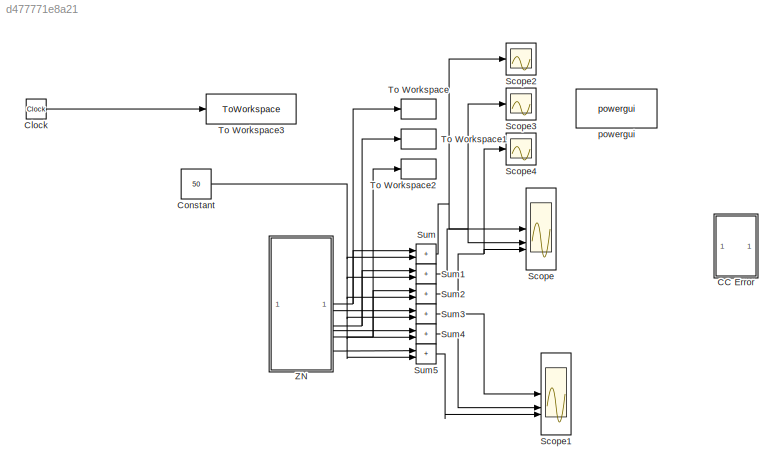
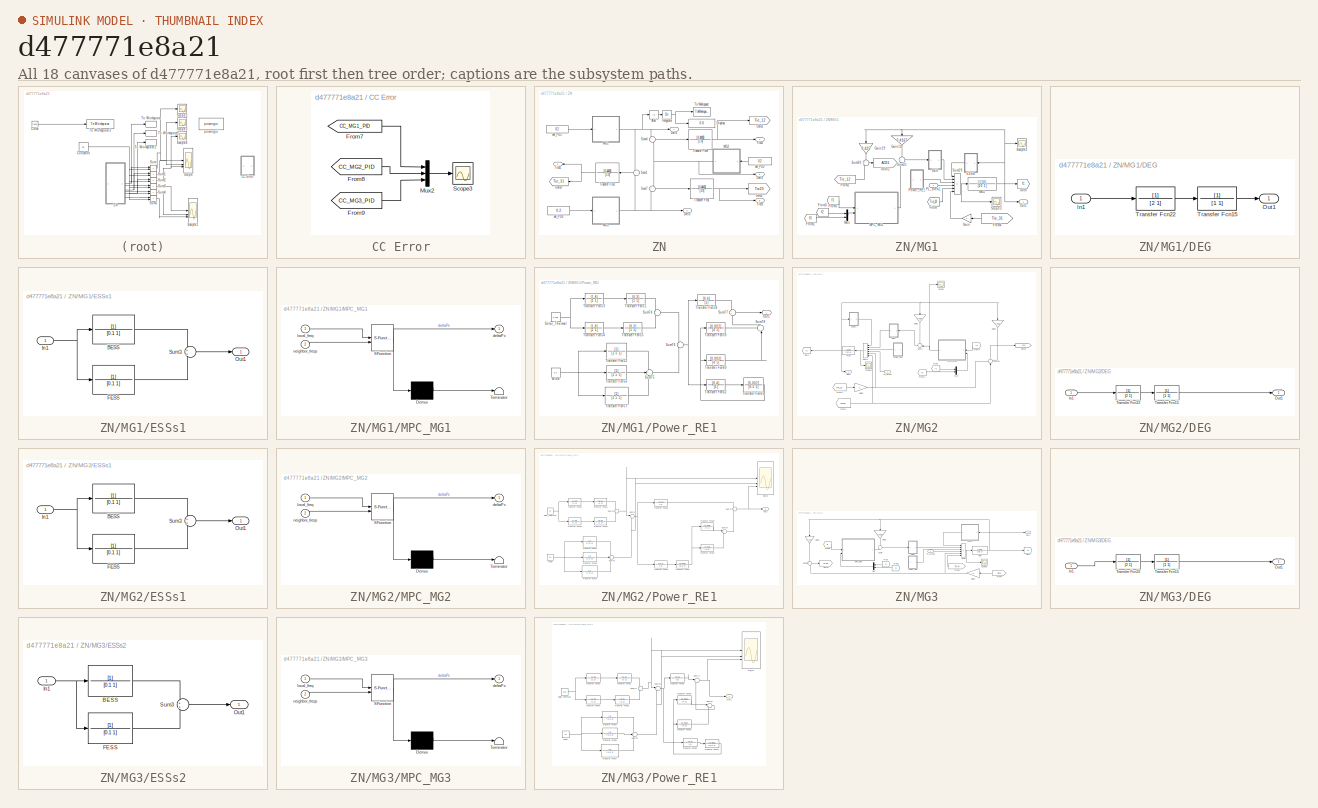
[diagram: thumbnail index - all 18 canvases of the model, root first then tree order]
MODEL slx_d477771e8a21
KIND model
CONFIG AbsTol = auto
CONFIG EnableMultiTasking = off
CONFIG FixedStep = auto
CONFIG MaxStep = auto
CONFIG MinStep = auto
CONFIG RelTol = 1e-3
CONFIG SampleTimeConstraint = Unconstrained
CONFIG SolverName = VariableStepAuto
CONFIG StartTime = 0.0
CONFIG StopTime = 100
BLOCK [SubSystem] CC Error
  Commented = on
BLOCK [From] CC Error/From7
  GotoTag = CC_MG1_PID
BLOCK [From] CC Error/From8
  GotoTag = CC_MG2_PID
BLOCK [From] CC Error/From9
  GotoTag = CC_MG3_PID
BLOCK [Mux] CC Error/Mux2
  DisplayOption = bar
  Inputs = 3
BLOCK [Scope] CC Error/Scope3
  Floating = off
  NumInputPorts = 1
  ScopeSpecificationString = Simulink.scopes.TimeScopeBlockCfg('CurrentConfiguration', extmgr.ConfigurationSet(extmgr.Configuration('Core','General UI',true),extmgr.Configuration('Core','Source UI',true),extmgr.Configuration('Sources','WiredSimulink',true,'DataLoggingVariableName','ScopeData3'),extmgr.Configuration('Visuals','Time Domain',true,'SerializedDisplays',{struct('MinYLimReal','-0.26826','MaxYLimReal','0.17483','YLab...<+1429ch>
BLOCK [Clock] Clock
BLOCK [Constant] Constant
  Value = 50
BLOCK [Scope] Scope
  Floating = off
  NumInputPorts = 3
  ScopeSpecificationString = Simulink.scopes.TimeScopeBlockCfg('CurrentConfiguration', extmgr.ConfigurationSet(extmgr.Configuration('Core','General UI',true,'FigureColor',[1 1 1]),extmgr.Configuration('Core','Source UI',true),extmgr.Configuration('Sources','WiredSimulink',true,'DataLoggingVariableName','ScopeData1'),extmgr.Configuration('Visuals','Time Domain',true,'SerializedDisplays',{struct('MinYLimReal','49.87','MaxYLimRe...<+4450ch>
BLOCK [Scope] Scope1
  Floating = off
  NumInputPorts = 3
  ScopeSpecificationString = Simulink.scopes.TimeScopeBlockCfg('CurrentConfiguration', extmgr.ConfigurationSet(extmgr.Configuration('Core','General UI',true,'FigureColor',[1 1 1]),extmgr.Configuration('Core','Source UI',true),extmgr.Configuration('Sources','WiredSimulink',true,'DataLoggingVariableName','ScopeData2'),extmgr.Configuration('Visuals','Time Domain',true,'SerializedDisplays',{struct('MinYLimReal','-0.14431','MaxYLi...<+4132ch>
BLOCK [Scope] Scope2
  Floating = off
  NumInputPorts = 1
  ScopeSpecificationString = Simulink.scopes.TimeScopeBlockCfg('CurrentConfiguration', extmgr.ConfigurationSet(extmgr.Configuration('Core','General UI',true,'FigureColor',[1 1 1]),extmgr.Configuration('Core','Source UI',true),extmgr.Configuration('Sources','WiredSimulink',true,'DataLoggingVariableName','ScopeData1'),extmgr.Configuration('Visuals','Time Domain',true,'SerializedDisplays',{struct('MinYLimReal','49.9286','MaxYLim...<+2300ch>
BLOCK [Scope] Scope3
  Floating = off
  NumInputPorts = 1
  ScopeSpecificationString = Simulink.scopes.TimeScopeBlockCfg('CurrentConfiguration', extmgr.ConfigurationSet(extmgr.Configuration('Core','General UI',true,'FigureColor',[1 1 1]),extmgr.Configuration('Core','Source UI',true),extmgr.Configuration('Sources','WiredSimulink',true,'DataLoggingVariableName','ScopeData2'),extmgr.Configuration('Visuals','Time Domain',true,'SerializedDisplays',{struct('MinYLimReal','49.93946','MaxYLi...<+2337ch>
BLOCK [Scope] Scope4
  Floating = off
  NumInputPorts = 1
  ScopeSpecificationString = Simulink.scopes.TimeScopeBlockCfg('CurrentConfiguration', extmgr.ConfigurationSet(extmgr.Configuration('Core','General UI',true,'FigureColor',[1 1 1]),extmgr.Configuration('Core','Source UI',true),extmgr.Configuration('Sources','WiredSimulink',true,'DataLoggingVariableName','ScopeData3'),extmgr.Configuration('Visuals','Time Domain',true,'SerializedDisplays',{struct('MinYLimReal','49.9759','MaxYLim...<+2345ch>
BLOCK [Sum] Sum
  IconShape = rectangular
  Inputs = |++
BLOCK [Sum] Sum1
  IconShape = rectangular
  Inputs = |++
BLOCK [Sum] Sum2
  IconShape = rectangular
  Inputs = |++
BLOCK [Sum] Sum3
  IconShape = rectangular
  Inputs = |++
BLOCK [Sum] Sum4
  IconShape = rectangular
  Inputs = |++
BLOCK [Sum] Sum5
  IconShape = rectangular
  Inputs = |++
BLOCK [ToWorkspace] To Workspace
  FixptAsFi = on
  MaxDataPoints = inf
  SampleTime = -1
  Save2DSignal = 2-D array (concatenate along first dimension)
  VariableName = dlf1
BLOCK [ToWorkspace] To Workspace1
  FixptAsFi = on
  MaxDataPoints = inf
  SampleTime = -1
  Save2DSignal = 2-D array (concatenate along first dimension)
  VariableName = dlf2
BLOCK [ToWorkspace] To Workspace2
  FixptAsFi = on
  MaxDataPoints = inf
  SampleTime = -1
  Save2DSignal = 2-D array (concatenate along first dimension)
  VariableName = dlf3
BLOCK [ToWorkspace] To Workspace3
  FixptAsFi = on
  MaxDataPoints = inf
  SampleTime = -1
  Save2DSignal = 2-D array (concatenate along first dimension)
  VariableName = t
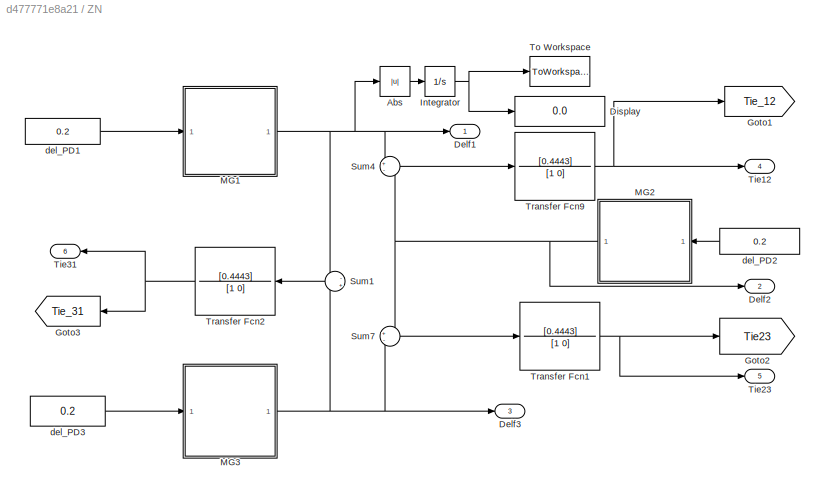
BLOCK [SubSystem] ZN
BLOCK [Abs] ZN/Abs
  SaturateOnIntegerOverflow = off
BLOCK [Outport] ZN/Delf1
  VectorParamsAs1DForOutWhenUnconnected = off
BLOCK [Outport] ZN/Delf2
  Port = 2
  VectorParamsAs1DForOutWhenUnconnected = off
BLOCK [Outport] ZN/Delf3
  Port = 3
  VectorParamsAs1DForOutWhenUnconnected = off
BLOCK [Display] ZN/Display
  Decimation = 1
BLOCK [Goto] ZN/Goto1
  GotoTag = Tie_12
  TagVisibility = global
BLOCK [Goto] ZN/Goto2
  GotoTag = Tie23
  TagVisibility = global
BLOCK [Goto] ZN/Goto3
  GotoTag = Tie_31
  NameLocation = top
  TagVisibility = global
BLOCK [Integrator] ZN/Integrator
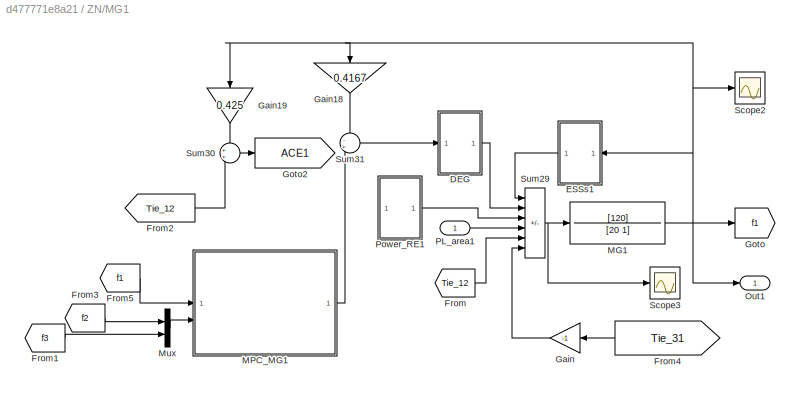
BLOCK [SubSystem] ZN/MG1
BLOCK [SubSystem] ZN/MG1/DEG
BLOCK [Inport] ZN/MG1/DEG/In1
BLOCK [Outport] ZN/MG1/DEG/Out1
  VectorParamsAs1DForOutWhenUnconnected = off
BLOCK [TransferFcn] ZN/MG1/DEG/Transfer Fcn15
  Denominator = [1 1]
BLOCK [TransferFcn] ZN/MG1/DEG/Transfer Fcn22
  Denominator = [2 1]
BLOCK [SubSystem] ZN/MG1/ESSs1
  NameLocation = top
BLOCK [TransferFcn] ZN/MG1/ESSs1/BESS
  Denominator = [0.1 1]
BLOCK [TransferFcn] ZN/MG1/ESSs1/FESS
  Denominator = [0.1 1]
BLOCK [Inport] ZN/MG1/ESSs1/In1
BLOCK [Outport] ZN/MG1/ESSs1/Out1
  NameLocation = top
  VectorParamsAs1DForOutWhenUnconnected = off
BLOCK [Sum] ZN/MG1/ESSs1/Sum3
BLOCK [From] ZN/MG1/From
  GotoTag = Tie_12
  TagVisibility = global
BLOCK [From] ZN/MG1/From1
  GotoTag = f3
  TagVisibility = global
BLOCK [From] ZN/MG1/From2
  GotoTag = Tie_12
  TagVisibility = global
BLOCK [From] ZN/MG1/From3
  GotoTag = f2
  TagVisibility = global
BLOCK [From] ZN/MG1/From4
  GotoTag = Tie_31
  NameLocation = top
  TagVisibility = global
BLOCK [From] ZN/MG1/From5
  GotoTag = f1
  TagVisibility = global
BLOCK [Gain] ZN/MG1/Gain
  Gain = -1
  NameLocation = top
BLOCK [Gain] ZN/MG1/Gain18
  Gain = 0.4167
  NameLocation = right
BLOCK [Gain] ZN/MG1/Gain19
  Gain = 0.425
  NameLocation = right
BLOCK [Goto] ZN/MG1/Goto
  GotoTag = f1
  TagVisibility = global
BLOCK [Goto] ZN/MG1/Goto2
  GotoTag = ACE1
  TagVisibility = global
BLOCK [TransferFcn] ZN/MG1/MG1
  Denominator = [20 1]
  Numerator = [120]
BLOCK [SubSystem] ZN/MG1/MPC_MG1
  ErrorFcn = Stateflow.Translate.translate
  PermitHierarchicalResolution = ExplicitOnly
  SFBlockType = MATLAB Function
  TreatAsAtomicUnit = on
BLOCK [Demux] ZN/MG1/MPC_MG1/ Demux 
  Outputs = 1
BLOCK [S-Function] ZN/MG1/MPC_MG1/ SFunction 
  EnableBusSupport = on
  FunctionName = sf_sfun
  PortCounts = [2 2]
  SFcnIsStateOwnerBlock = off
  SFunctionDeploymentMode = off
  Tag = Stateflow S-Function 2
BLOCK [Terminator] ZN/MG1/MPC_MG1/ Terminator 
BLOCK [Outport] ZN/MG1/MPC_MG1/deltaPc
BLOCK [Inport] ZN/MG1/MPC_MG1/local_freq
BLOCK [Inport] ZN/MG1/MPC_MG1/neighbor_freqs
  Port = 2
BLOCK [Mux] ZN/MG1/Mux
  DisplayOption = bar
  Inputs = 2
BLOCK [Outport] ZN/MG1/Out1
  VectorParamsAs1DForOutWhenUnconnected = off
BLOCK [Inport] ZN/MG1/PL_area1
BLOCK [SubSystem] ZN/MG1/Power_RE1
BLOCK [Outport] ZN/MG1/Power_RE1/Out1
  VectorParamsAs1DForOutWhenUnconnected = off
BLOCK [Constant] ZN/MG1/Power_RE1/Solar_Thermal
  Value = 0.125
BLOCK [Sum] ZN/MG1/Power_RE1/Sum74
BLOCK [Sum] ZN/MG1/Power_RE1/Sum75
  Inputs = +++
BLOCK [Sum] ZN/MG1/Power_RE1/Sum76
BLOCK [Sum] ZN/MG1/Power_RE1/Sum77
BLOCK [Sum] ZN/MG1/Power_RE1/Sum78
  NameLocation = right
BLOCK [TransferFcn] ZN/MG1/Power_RE1/Transfer Fcn51
  Denominator = [1 1]
  Numerator = [0.3]
BLOCK [TransferFcn] ZN/MG1/Power_RE1/Transfer Fcn52
  Denominator = [1.5 1]
BLOCK [TransferFcn] ZN/MG1/Power_RE1/Transfer Fcn53
  Denominator = [1 1]
  Numerator = [1.8]
BLOCK [TransferFcn] ZN/MG1/Power_RE1/Transfer Fcn54
  Denominator = [1 1]
  Numerator = [1.8]
BLOCK [TransferFcn] ZN/MG1/Power_RE1/Transfer Fcn55
  Denominator = [1 1]
  Numerator = [0.3]
BLOCK [TransferFcn] ZN/MG1/Power_RE1/Transfer Fcn56
  Denominator = [1.5 1]
BLOCK [TransferFcn] ZN/MG1/Power_RE1/Transfer Fcn57
  Denominator = [1.5 1]
BLOCK [TransferFcn] ZN/MG1/Power_RE1/Transfer Fcn58
  Denominator = [1]
  Numerator = [0.6]
BLOCK [TransferFcn] ZN/MG1/Power_RE1/Transfer Fcn59
  Denominator = [4 1]
  Numerator = [0.002]
BLOCK [TransferFcn] ZN/MG1/Power_RE1/Transfer Fcn60
  Denominator = [4 1]
  Numerator = [0.002]
BLOCK [TransferFcn] ZN/MG1/Power_RE1/Transfer Fcn61
  Denominator = [0.5 1]
  Numerator = [0.002]
BLOCK [TransferFcn] ZN/MG1/Power_RE1/Transfer Fcn62
  Denominator = [1]
  Numerator = [0.4]
BLOCK [Constant] ZN/MG1/Power_RE1/Wind
  Value = 0.1
BLOCK [Scope] ZN/MG1/Scope2
  Floating = off
  NumInputPorts = 1
  ScopeSpecificationString = Simulink.scopes.TimeScopeBlockCfg('CurrentConfiguration', extmgr.ConfigurationSet(extmgr.Configuration('Core','General UI',true),extmgr.Configuration('Core','Source UI',true),extmgr.Configuration('Sources','WiredSimulink',true,'DataLoggingVariableName','ScopeData4'),extmgr.Configuration('Visuals','Time Domain',true,'SerializedDisplays',{struct('MinYLimReal','-0.02327','MaxYLimReal','0.14344','YLab...<+1389ch>
BLOCK [Scope] ZN/MG1/Scope3
  Floating = off
  NumInputPorts = 1
  ScopeSpecificationString = Simulink.scopes.TimeScopeBlockCfg('CurrentConfiguration', extmgr.ConfigurationSet(extmgr.Configuration('Core','General UI',true),extmgr.Configuration('Core','Source UI',true),extmgr.Configuration('Sources','WiredSimulink',true,'DataLoggingVariableName','ScopeData5'),extmgr.Configuration('Visuals','Time Domain',true,'SerializedDisplays',{struct('MinYLimReal','-0.02347','MaxYLimReal','0.01119','YLab...<+1391ch>
BLOCK [Sum] ZN/MG1/Sum29
  IconShape = rectangular
  Inputs = -++---
  NameLocation = top
BLOCK [Sum] ZN/MG1/Sum30
BLOCK [Sum] ZN/MG1/Sum31
  Inputs = -+
BLOCK [SubSystem] ZN/MG2
  NameLocation = top
BLOCK [SubSystem] ZN/MG2/DEG
  NameLocation = top
BLOCK [Inport] ZN/MG2/DEG/In1
BLOCK [Outport] ZN/MG2/DEG/Out1
  VectorParamsAs1DForOutWhenUnconnected = off
BLOCK [TransferFcn] ZN/MG2/DEG/Transfer Fcn15
  Denominator = [1 1]
BLOCK [TransferFcn] ZN/MG2/DEG/Transfer Fcn22
  Denominator = [2 1]
BLOCK [Outport] ZN/MG2/Delf2
  VectorParamsAs1DForOutWhenUnconnected = off
BLOCK [SubSystem] ZN/MG2/ESSs1
BLOCK [TransferFcn] ZN/MG2/ESSs1/BESS
  Denominator = [0.1 1]
BLOCK [TransferFcn] ZN/MG2/ESSs1/FESS
  Denominator = [0.1 1]
BLOCK [Inport] ZN/MG2/ESSs1/In1
BLOCK [Outport] ZN/MG2/ESSs1/Out1
  NameLocation = top
  VectorParamsAs1DForOutWhenUnconnected = off
BLOCK [Sum] ZN/MG2/ESSs1/Sum3
BLOCK [From] ZN/MG2/From
  GotoTag = f1
  TagVisibility = global
BLOCK [From] ZN/MG2/From1
  GotoTag = Tie23
  TagVisibility = global
BLOCK [From] ZN/MG2/From2
  GotoTag = f3
  TagVisibility = global
BLOCK [From] ZN/MG2/From3
  GotoTag = Tie_12
  TagVisibility = global
BLOCK [From] ZN/MG2/From4
  GotoTag = f2
  NameLocation = top
  TagVisibility = global
BLOCK [Gain] ZN/MG2/Gain1
  Gain = 0.4167
  NameLocation = right
BLOCK [Gain] ZN/MG2/Gain3
  Gain = 0.425
  NameLocation = right
BLOCK [Gain] ZN/MG2/Gain8
  Gain = -1
  NameLocation = top
BLOCK [Goto] ZN/MG2/Goto
  GotoTag = f2
  NameLocation = top
  TagVisibility = global
BLOCK [Goto] ZN/MG2/Goto2
  GotoTag = ACE2
  TagVisibility = global
BLOCK [TransferFcn] ZN/MG2/MG2
  Denominator = [20 1]
  NameLocation = top
  Numerator = [120]
BLOCK [SubSystem] ZN/MG2/MPC_MG2
  ErrorFcn = Stateflow.Translate.translate
  NameLocation = top
  PermitHierarchicalResolution = ExplicitOnly
  SFBlockType = MATLAB Function
  TreatAsAtomicUnit = on
BLOCK [Demux] ZN/MG2/MPC_MG2/ Demux 
  Outputs = 1
BLOCK [S-Function] ZN/MG2/MPC_MG2/ SFunction 
  EnableBusSupport = on
  FunctionName = sf_sfun
  PortCounts = [2 2]
  SFcnIsStateOwnerBlock = off
  SFunctionDeploymentMode = off
  Tag = Stateflow S-Function 1
BLOCK [Terminator] ZN/MG2/MPC_MG2/ Terminator 
BLOCK [Outport] ZN/MG2/MPC_MG2/deltaPc
BLOCK [Inport] ZN/MG2/MPC_MG2/local_freq
BLOCK [Inport] ZN/MG2/MPC_MG2/neighbor_freqs
  Port = 2
BLOCK [Mux] ZN/MG2/Mux
  DisplayOption = bar
  Inputs = 2
BLOCK [Inport] ZN/MG2/PL_area2
  NameLocation = top
BLOCK [SubSystem] ZN/MG2/Power_RE1
  NameLocation = top
BLOCK [Scope] ZN/MG2/Power_RE1/Del_F1
  Floating = off
  NumInputPorts = 3
  ScopeSpecificationString = Simulink.scopes.TimeScopeBlockCfg('CurrentConfiguration', extmgr.ConfigurationSet(extmgr.Configuration('Core','General UI',true),extmgr.Configuration('Core','Source UI',true),extmgr.Configuration('Sources','WiredSimulink',true,'DataLoggingSaveFormat','StructureWithTime','DataLoggingDecimation','1','DataLoggingDecimateData',true,'DataLoggingVariableName','ScopeData1'),extmgr.Configuration('Visuals'...<+3232ch>
BLOCK [Outport] ZN/MG2/Power_RE1/Out1
  VectorParamsAs1DForOutWhenUnconnected = off
BLOCK [Constant] ZN/MG2/Power_RE1/Solar_Thermal
  Value = 0.1
BLOCK [Sum] ZN/MG2/Power_RE1/Sum74
BLOCK [Sum] ZN/MG2/Power_RE1/Sum75
  Inputs = +++
BLOCK [Sum] ZN/MG2/Power_RE1/Sum76
BLOCK [Sum] ZN/MG2/Power_RE1/Sum77
BLOCK [Sum] ZN/MG2/Power_RE1/Sum78
BLOCK [TransferFcn] ZN/MG2/Power_RE1/Transfer Fcn51
  Denominator = [1 1]
  Numerator = [0.3]
BLOCK [TransferFcn] ZN/MG2/Power_RE1/Transfer Fcn52
  Denominator = [1.5 1]
BLOCK [TransferFcn] ZN/MG2/Power_RE1/Transfer Fcn53
  Denominator = [1 1]
  Numerator = [1.8]
BLOCK [TransferFcn] ZN/MG2/Power_RE1/Transfer Fcn54
  Denominator = [1 1]
  Numerator = [1.8]
BLOCK [TransferFcn] ZN/MG2/Power_RE1/Transfer Fcn55
  Denominator = [1 1]
  Numerator = [0.3]
BLOCK [TransferFcn] ZN/MG2/Power_RE1/Transfer Fcn56
  Denominator = [1.5 1]
BLOCK [TransferFcn] ZN/MG2/Power_RE1/Transfer Fcn57
  Denominator = [1.5 1]
BLOCK [TransferFcn] ZN/MG2/Power_RE1/Transfer Fcn58
  Denominator = [1]
  Numerator = [0.6]
BLOCK [TransferFcn] ZN/MG2/Power_RE1/Transfer Fcn59
  Denominator = [4 1]
  Numerator = [0.002]
BLOCK [TransferFcn] ZN/MG2/Power_RE1/Transfer Fcn60
  Denominator = [4 1]
  Numerator = [0.002]
BLOCK [TransferFcn] ZN/MG2/Power_RE1/Transfer Fcn61
  Denominator = [0.5 1]
  Numerator = [0.002]
BLOCK [TransferFcn] ZN/MG2/Power_RE1/Transfer Fcn62
  Denominator = [1]
  Numerator = [0.4]
BLOCK [Constant] ZN/MG2/Power_RE1/Wind
  Value = 0.1
BLOCK [Scope] ZN/MG2/Scope
  Floating = off
  NumInputPorts = 1
  ScopeSpecificationString = Simulink.scopes.TimeScopeBlockCfg('CurrentConfiguration', extmgr.ConfigurationSet(extmgr.Configuration('Core','General UI',true),extmgr.Configuration('Core','Source UI',true),extmgr.Configuration('Sources','WiredSimulink',true,'DataLoggingVariableName','ScopeData3'),extmgr.Configuration('Visuals','Time Domain',true,'SerializedDisplays',{struct('MinYLimReal','-0.61944','MaxYLimReal','0.55198','YLab...<+1400ch>
BLOCK [Scope] ZN/MG2/Scope2
  Floating = off
  NumInputPorts = 1
  ScopeSpecificationString = Simulink.scopes.TimeScopeBlockCfg('CurrentConfiguration', extmgr.ConfigurationSet(extmgr.Configuration('Core','General UI',true),extmgr.Configuration('Core','Source UI',true),extmgr.Configuration('Sources','WiredSimulink',true,'DataLoggingVariableName','ScopeData6'),extmgr.Configuration('Visuals','Time Domain',true,'SerializedDisplays',{struct('MinYLimReal','-0.19774','MaxYLimReal','0.07968','YLab...<+1415ch>
BLOCK [Sum] ZN/MG2/Sum1
  IconShape = rectangular
  Inputs = -++---
BLOCK [Sum] ZN/MG2/Sum16
  Inputs = +++
  NameLocation = right
BLOCK [Sum] ZN/MG2/Sum2
  Inputs = -+
  NameLocation = top
BLOCK [SubSystem] ZN/MG3
BLOCK [SubSystem] ZN/MG3/DEG
BLOCK [Inport] ZN/MG3/DEG/In1
BLOCK [Outport] ZN/MG3/DEG/Out1
  VectorParamsAs1DForOutWhenUnconnected = off
BLOCK [TransferFcn] ZN/MG3/DEG/Transfer Fcn15
  Denominator = [1 1]
BLOCK [TransferFcn] ZN/MG3/DEG/Transfer Fcn22
  Denominator = [2 1]
BLOCK [SubSystem] ZN/MG3/ESSs2
  NameLocation = top
BLOCK [TransferFcn] ZN/MG3/ESSs2/BESS
  Denominator = [0.1 1]
BLOCK [TransferFcn] ZN/MG3/ESSs2/FESS
  Denominator = [0.1 1]
BLOCK [Inport] ZN/MG3/ESSs2/In1
BLOCK [Outport] ZN/MG3/ESSs2/Out1
  NameLocation = top
  VectorParamsAs1DForOutWhenUnconnected = off
BLOCK [Sum] ZN/MG3/ESSs2/Sum3
BLOCK [From] ZN/MG3/From
  GotoTag = f1
  NameLocation = top
  TagVisibility = global
BLOCK [From] ZN/MG3/From1
  GotoTag = Tie_31
  NameLocation = top
  TagVisibility = global
BLOCK [From] ZN/MG3/From2
  GotoTag = f2
  NameLocation = top
  TagVisibility = global
BLOCK [From] ZN/MG3/From3
  GotoTag = f3
  TagVisibility = global
BLOCK [From] ZN/MG3/From4
  GotoTag = Tie23
  NameLocation = top
  TagVisibility = global
BLOCK [Gain] ZN/MG3/Gain2
  Gain = 0.4167
  NameLocation = right
BLOCK [Gain] ZN/MG3/Gain3
  Gain = -1
BLOCK [Gain] ZN/MG3/Gain5
  Gain = 0.425
  NameLocation = right
BLOCK [Goto] ZN/MG3/Goto
  GotoTag = f3
  TagVisibility = global
BLOCK [Goto] ZN/MG3/Goto2
  GotoTag = ACE3
  TagVisibility = global
BLOCK [TransferFcn] ZN/MG3/MG3
  Denominator = [20 1]
  Numerator = [120]
BLOCK [SubSystem] ZN/MG3/MPC_MG3
  ErrorFcn = Stateflow.Translate.translate
  PermitHierarchicalResolution = ExplicitOnly
  SFBlockType = MATLAB Function
  TreatAsAtomicUnit = on
BLOCK [Demux] ZN/MG3/MPC_MG3/ Demux 
  Outputs = 1
BLOCK [S-Function] ZN/MG3/MPC_MG3/ SFunction 
  EnableBusSupport = on
  FunctionName = sf_sfun
  PortCounts = [2 2]
  SFcnIsStateOwnerBlock = off
  SFunctionDeploymentMode = off
  Tag = Stateflow S-Function 3
BLOCK [Terminator] ZN/MG3/MPC_MG3/ Terminator 
BLOCK [Outport] ZN/MG3/MPC_MG3/deltaPc
BLOCK [Inport] ZN/MG3/MPC_MG3/local_freq
BLOCK [Inport] ZN/MG3/MPC_MG3/neighbor_freqs
  Port = 2
BLOCK [Mux] ZN/MG3/Mux
  DisplayOption = bar
  Inputs = 2
  NameLocation = top
BLOCK [Outport] ZN/MG3/Out1
  VectorParamsAs1DForOutWhenUnconnected = off
BLOCK [Inport] ZN/MG3/PL_area3
BLOCK [SubSystem] ZN/MG3/Power_RE1
BLOCK [Scope] ZN/MG3/Power_RE1/Del_F1
  Floating = off
  NumInputPorts = 3
  ScopeSpecificationString = Simulink.scopes.TimeScopeBlockCfg('CurrentConfiguration', extmgr.ConfigurationSet(extmgr.Configuration('Core','General UI',true),extmgr.Configuration('Core','Source UI',true),extmgr.Configuration('Sources','WiredSimulink',true,'DataLoggingSaveFormat','StructureWithTime','DataLoggingDecimation','1','DataLoggingDecimateData',true,'DataLoggingVariableName','ScopeData1'),extmgr.Configuration('Visuals'...<+3232ch>
BLOCK [Outport] ZN/MG3/Power_RE1/Out1
  VectorParamsAs1DForOutWhenUnconnected = off
BLOCK [Constant] ZN/MG3/Power_RE1/Solar_Thermal
  Value = 0.15
BLOCK [Sum] ZN/MG3/Power_RE1/Sum74
BLOCK [Sum] ZN/MG3/Power_RE1/Sum75
  Inputs = +++
BLOCK [Sum] ZN/MG3/Power_RE1/Sum76
BLOCK [Sum] ZN/MG3/Power_RE1/Sum77
BLOCK [Sum] ZN/MG3/Power_RE1/Sum78
BLOCK [TransferFcn] ZN/MG3/Power_RE1/Transfer Fcn51
  Denominator = [1 1]
  Numerator = [0.3]
BLOCK [TransferFcn] ZN/MG3/Power_RE1/Transfer Fcn52
  Denominator = [1.5 1]
BLOCK [TransferFcn] ZN/MG3/Power_RE1/Transfer Fcn53
  Denominator = [1 1]
  Numerator = [1.8]
BLOCK [TransferFcn] ZN/MG3/Power_RE1/Transfer Fcn54
  Denominator = [1 1]
  Numerator = [1.8]
BLOCK [TransferFcn] ZN/MG3/Power_RE1/Transfer Fcn55
  Denominator = [1 1]
  Numerator = [0.3]
BLOCK [TransferFcn] ZN/MG3/Power_RE1/Transfer Fcn56
  Denominator = [1.5 1]
BLOCK [TransferFcn] ZN/MG3/Power_RE1/Transfer Fcn57
  Denominator = [1.5 1]
BLOCK [TransferFcn] ZN/MG3/Power_RE1/Transfer Fcn58
  Denominator = [1]
  Numerator = [0.6]
BLOCK [TransferFcn] ZN/MG3/Power_RE1/Transfer Fcn59
  Denominator = [4 1]
  Numerator = [0.002]
BLOCK [TransferFcn] ZN/MG3/Power_RE1/Transfer Fcn60
  Denominator = [4 1]
  Numerator = [0.002]
BLOCK [TransferFcn] ZN/MG3/Power_RE1/Transfer Fcn61
  Denominator = [0.5 1]
  Numerator = [0.002]
BLOCK [TransferFcn] ZN/MG3/Power_RE1/Transfer Fcn62
  Denominator = [1]
  Numerator = [0.4]
BLOCK [Constant] ZN/MG3/Power_RE1/Wind
  Value = 0.1
BLOCK [Scope] ZN/MG3/Scope2
  Floating = off
  NumInputPorts = 1
  ScopeSpecificationString = Simulink.scopes.TimeScopeBlockCfg('CurrentConfiguration', extmgr.ConfigurationSet(extmgr.Configuration('Core','General UI',true),extmgr.Configuration('Core','Source UI',true),extmgr.Configuration('Sources','WiredSimulink',true,'DataLoggingVariableName','ScopeData7'),extmgr.Configuration('Visuals','Time Domain',true,'SerializedDisplays',{struct('MinYLimReal','-0.05672','MaxYLimReal','0.01047','YLab...<+1390ch>
BLOCK [Sum] ZN/MG3/Sum3
  IconShape = rectangular
  Inputs = -++---
  NameLocation = top
BLOCK [Sum] ZN/MG3/Sum5
BLOCK [Sum] ZN/MG3/Sum6
  Inputs = -+
BLOCK [Sum] ZN/Sum1
  Inputs = -+
  NameLocation = top
BLOCK [Sum] ZN/Sum4
  Inputs = +-
BLOCK [Sum] ZN/Sum7
  Inputs = +-
BLOCK [Outport] ZN/Tie12
  Port = 4
  VectorParamsAs1DForOutWhenUnconnected = off
BLOCK [Outport] ZN/Tie23
  Port = 5
  VectorParamsAs1DForOutWhenUnconnected = off
BLOCK [Outport] ZN/Tie31
  NameLocation = top
  Port = 6
  VectorParamsAs1DForOutWhenUnconnected = off
BLOCK [ToWorkspace] ZN/To Workspace
  FixptAsFi = on
  MaxDataPoints = inf
  SampleTime = -1
  SaveFormat = Timeseries
  VariableName = e
BLOCK [TransferFcn] ZN/Transfer Fcn1
  Denominator = [1 0]
  Numerator = [0.4443]
BLOCK [TransferFcn] ZN/Transfer Fcn2
  Denominator = [1 0]
  NameLocation = top
  Numerator = [0.4443]
BLOCK [TransferFcn] ZN/Transfer Fcn9
  Denominator = [1 0]
  Numerator = [0.4443]
BLOCK [Constant] ZN/del_PD1
  Value = 0.2
BLOCK [Constant] ZN/del_PD2
  NameLocation = top
  Value = 0.2
BLOCK [Constant] ZN/del_PD3
  Value = 0.2
BLOCK [Reference] powergui  REF=spspowerguiLib/powergui
  LibrarySourceBlock = sps_lib/powergui
  Priority = 1
  SourceBlock = spspowerguiLib/powergui
  SourceType = PSB option menu block
LINE CC Error/From7:1 -> CC Error/Mux2:1
LINE CC Error/From8:1 -> CC Error/Mux2:2
LINE CC Error/From9:1 -> CC Error/Mux2:3
LINE CC Error/Mux2:1 -> CC Error/Scope3:1
LINE Clock:1 -> To Workspace3:1
NET Constant:1 -> Sum1:2, Sum2:2, Sum3:2, Sum4:2, Sum5:2, Sum:2
NET Sum1:1 -> Scope3:1, Scope:2
NET Sum2:1 -> Scope4:1, Scope:3
LINE Sum3:1 -> Scope1:1
LINE Sum4:1 -> Scope1:2
LINE Sum5:1 -> Scope1:3
NET Sum:1 -> Scope2:1, Scope:1
LINE ZN/Abs:1 -> ZN/Integrator:1
NET ZN/Integrator:1 -> ZN/Display:1, ZN/To Workspace:1
LINE ZN/MG1/DEG/In1:1 -> ZN/MG1/DEG/Transfer Fcn22:1
LINE ZN/MG1/DEG/Transfer Fcn15:1 -> ZN/MG1/DEG/Out1:1
LINE ZN/MG1/DEG/Transfer Fcn22:1 -> ZN/MG1/DEG/Transfer Fcn15:1
LINE ZN/MG1/DEG:1 -> ZN/MG1/Sum29:2
LINE ZN/MG1/ESSs1/BESS:1 -> ZN/MG1/ESSs1/Sum3:1
LINE ZN/MG1/ESSs1/FESS:1 -> ZN/MG1/ESSs1/Sum3:2
NET ZN/MG1/ESSs1/In1:1 -> ZN/MG1/ESSs1/BESS:1, ZN/MG1/ESSs1/FESS:1
LINE ZN/MG1/ESSs1/Sum3:1 -> ZN/MG1/ESSs1/Out1:1
LINE ZN/MG1/ESSs1:1 -> ZN/MG1/Sum29:1
LINE ZN/MG1/From1:1 -> ZN/MG1/Mux:2
LINE ZN/MG1/From2:1 -> ZN/MG1/Sum30:2
LINE ZN/MG1/From3:1 -> ZN/MG1/Mux:1
LINE ZN/MG1/From4:1 -> ZN/MG1/Gain:1
LINE ZN/MG1/From5:1 -> ZN/MG1/MPC_MG1:1
LINE ZN/MG1/From:1 -> ZN/MG1/Sum29:5
LINE ZN/MG1/Gain18:1 -> ZN/MG1/Sum31:1
LINE ZN/MG1/Gain19:1 -> ZN/MG1/Sum30:1
LINE ZN/MG1/Gain:1 -> ZN/MG1/Sum29:6
NET ZN/MG1/MG1:1 -> ZN/MG1/ESSs1:1, ZN/MG1/Gain18:1, ZN/MG1/Gain19:1, ZN/MG1/Goto:1, ZN/MG1/Out1:1, ZN/MG1/Scope2:1
LINE ZN/MG1/MPC_MG1:1 -> ZN/MG1/Sum31:2
LINE ZN/MG1/Mux:1 -> ZN/MG1/MPC_MG1:2
LINE ZN/MG1/PL_area1:1 -> ZN/MG1/Sum29:4
NET ZN/MG1/Power_RE1/Solar_Thermal:1 -> ZN/MG1/Power_RE1/Transfer Fcn53:1, ZN/MG1/Power_RE1/Transfer Fcn54:1
LINE ZN/MG1/Power_RE1/Sum74:1 -> ZN/MG1/Power_RE1/Sum76:1
LINE ZN/MG1/Power_RE1/Sum75:1 -> ZN/MG1/Power_RE1/Sum76:2
NET ZN/MG1/Power_RE1/Sum76:1 -> ZN/MG1/Power_RE1/Transfer Fcn58:1, ZN/MG1/Power_RE1/Transfer Fcn62:1
LINE ZN/MG1/Power_RE1/Sum77:1 -> ZN/MG1/Power_RE1/Out1:1
LINE ZN/MG1/Power_RE1/Sum78:1 -> ZN/MG1/Power_RE1/Sum77:2
LINE ZN/MG1/Power_RE1/Transfer Fcn51:1 -> ZN/MG1/Power_RE1/Sum74:1
LINE ZN/MG1/Power_RE1/Transfer Fcn52:1 -> ZN/MG1/Power_RE1/Sum75:1
LINE ZN/MG1/Power_RE1/Transfer Fcn53:1 -> ZN/MG1/Power_RE1/Transfer Fcn51:1
LINE ZN/MG1/Power_RE1/Transfer Fcn54:1 -> ZN/MG1/Power_RE1/Transfer Fcn55:1
LINE ZN/MG1/Power_RE1/Transfer Fcn55:1 -> ZN/MG1/Power_RE1/Sum74:2
LINE ZN/MG1/Power_RE1/Transfer Fcn56:1 -> ZN/MG1/Power_RE1/Sum75:2
LINE ZN/MG1/Power_RE1/Transfer Fcn57:1 -> ZN/MG1/Power_RE1/Sum75:3
LINE ZN/MG1/Power_RE1/Transfer Fcn58:1 -> ZN/MG1/Power_RE1/Sum77:1
LINE ZN/MG1/Power_RE1/Transfer Fcn59:1 -> ZN/MG1/Power_RE1/Sum78:1
LINE ZN/MG1/Power_RE1/Transfer Fcn60:1 -> ZN/MG1/Power_RE1/Sum78:2
NET ZN/MG1/Power_RE1/Transfer Fcn61:1 -> ZN/MG1/Power_RE1/Transfer Fcn59:1, ZN/MG1/Power_RE1/Transfer Fcn60:1
LINE ZN/MG1/Power_RE1/Transfer Fcn62:1 -> ZN/MG1/Power_RE1/Transfer Fcn61:1
NET ZN/MG1/Power_RE1/Wind:1 -> ZN/MG1/Power_RE1/Transfer Fcn52:1, ZN/MG1/Power_RE1/Transfer Fcn56:1, ZN/MG1/Power_RE1/Transfer Fcn57:1
LINE ZN/MG1/Power_RE1:1 -> ZN/MG1/Sum29:3
NET ZN/MG1/Sum29:1 -> ZN/MG1/MG1:1, ZN/MG1/Scope3:1
LINE ZN/MG1/Sum30:1 -> ZN/MG1/Goto2:1
LINE ZN/MG1/Sum31:1 -> ZN/MG1/DEG:1
NET ZN/MG1:1 -> ZN/Abs:1, ZN/Delf1:1, ZN/Sum1:1, ZN/Sum4:1
LINE ZN/MG2/DEG/In1:1 -> ZN/MG2/DEG/Transfer Fcn22:1
LINE ZN/MG2/DEG/Transfer Fcn15:1 -> ZN/MG2/DEG/Out1:1
LINE ZN/MG2/DEG/Transfer Fcn22:1 -> ZN/MG2/DEG/Transfer Fcn15:1
LINE ZN/MG2/DEG:1 -> ZN/MG2/Sum1:2
LINE ZN/MG2/ESSs1/BESS:1 -> ZN/MG2/ESSs1/Sum3:1
LINE ZN/MG2/ESSs1/FESS:1 -> ZN/MG2/ESSs1/Sum3:2
NET ZN/MG2/ESSs1/In1:1 -> ZN/MG2/ESSs1/BESS:1, ZN/MG2/ESSs1/FESS:1
LINE ZN/MG2/ESSs1/Sum3:1 -> ZN/MG2/ESSs1/Out1:1
LINE ZN/MG2/ESSs1:1 -> ZN/MG2/Sum1:1
NET ZN/MG2/From1:1 -> ZN/MG2/Sum16:2, ZN/MG2/Sum1:6
LINE ZN/MG2/From2:1 -> ZN/MG2/Mux:2
LINE ZN/MG2/From3:1 -> ZN/MG2/Gain8:1
LINE ZN/MG2/From4:1 -> ZN/MG2/MPC_MG2:1
LINE ZN/MG2/From:1 -> ZN/MG2/Mux:1
LINE ZN/MG2/Gain1:1 -> ZN/MG2/Sum2:1
LINE ZN/MG2/Gain3:1 -> ZN/MG2/Sum16:3
NET ZN/MG2/Gain8:1 -> ZN/MG2/Sum16:1, ZN/MG2/Sum1:5
NET ZN/MG2/MG2:1 -> ZN/MG2/Delf2:1, ZN/MG2/ESSs1:1, ZN/MG2/Gain1:1, ZN/MG2/Gain3:1, ZN/MG2/Goto:1
NET ZN/MG2/MPC_MG2:1 -> ZN/MG2/Scope:1, ZN/MG2/Sum2:2
LINE ZN/MG2/Mux:1 -> ZN/MG2/MPC_MG2:2
LINE ZN/MG2/PL_area2:1 -> ZN/MG2/Sum1:4
NET ZN/MG2/Power_RE1/Solar_Thermal:1 -> ZN/MG2/Power_RE1/Transfer Fcn53:1, ZN/MG2/Power_RE1/Transfer Fcn54:1
NET ZN/MG2/Power_RE1/Sum74:1 -> ZN/MG2/Power_RE1/Del_F1:1, ZN/MG2/Power_RE1/Sum76:1
NET ZN/MG2/Power_RE1/Sum75:1 -> ZN/MG2/Power_RE1/Del_F1:2, ZN/MG2/Power_RE1/Sum76:2
NET ZN/MG2/Power_RE1/Sum76:1 -> ZN/MG2/Power_RE1/Transfer Fcn58:1, ZN/MG2/Power_RE1/Transfer Fcn62:1
NET ZN/MG2/Power_RE1/Sum77:1 -> ZN/MG2/Power_RE1/Del_F1:3, ZN/MG2/Power_RE1/Out1:1
LINE ZN/MG2/Power_RE1/Sum78:1 -> ZN/MG2/Power_RE1/Sum77:2
LINE ZN/MG2/Power_RE1/Transfer Fcn51:1 -> ZN/MG2/Power_RE1/Sum74:1
LINE ZN/MG2/Power_RE1/Transfer Fcn52:1 -> ZN/MG2/Power_RE1/Sum75:1
LINE ZN/MG2/Power_RE1/Transfer Fcn53:1 -> ZN/MG2/Power_RE1/Transfer Fcn51:1
LINE ZN/MG2/Power_RE1/Transfer Fcn54:1 -> ZN/MG2/Power_RE1/Transfer Fcn55:1
LINE ZN/MG2/Power_RE1/Transfer Fcn55:1 -> ZN/MG2/Power_RE1/Sum74:2
LINE ZN/MG2/Power_RE1/Transfer Fcn56:1 -> ZN/MG2/Power_RE1/Sum75:2
LINE ZN/MG2/Power_RE1/Transfer Fcn57:1 -> ZN/MG2/Power_RE1/Sum75:3
LINE ZN/MG2/Power_RE1/Transfer Fcn58:1 -> ZN/MG2/Power_RE1/Sum77:1
LINE ZN/MG2/Power_RE1/Transfer Fcn59:1 -> ZN/MG2/Power_RE1/Sum78:1
LINE ZN/MG2/Power_RE1/Transfer Fcn60:1 -> ZN/MG2/Power_RE1/Sum78:2
NET ZN/MG2/Power_RE1/Transfer Fcn61:1 -> ZN/MG2/Power_RE1/Transfer Fcn59:1, ZN/MG2/Power_RE1/Transfer Fcn60:1
LINE ZN/MG2/Power_RE1/Transfer Fcn62:1 -> ZN/MG2/Power_RE1/Transfer Fcn61:1
NET ZN/MG2/Power_RE1/Wind:1 -> ZN/MG2/Power_RE1/Transfer Fcn52:1, ZN/MG2/Power_RE1/Transfer Fcn56:1, ZN/MG2/Power_RE1/Transfer Fcn57:1
LINE ZN/MG2/Power_RE1:1 -> ZN/MG2/Sum1:3
LINE ZN/MG2/Sum16:1 -> ZN/MG2/Goto2:1
NET ZN/MG2/Sum1:1 -> ZN/MG2/MG2:1, ZN/MG2/Scope2:1
LINE ZN/MG2/Sum2:1 -> ZN/MG2/DEG:1
NET ZN/MG2:1 -> ZN/Delf2:1, ZN/Sum4:2, ZN/Sum7:1
LINE ZN/MG3/DEG/In1:1 -> ZN/MG3/DEG/Transfer Fcn22:1
LINE ZN/MG3/DEG/Transfer Fcn15:1 -> ZN/MG3/DEG/Out1:1
LINE ZN/MG3/DEG/Transfer Fcn22:1 -> ZN/MG3/DEG/Transfer Fcn15:1
LINE ZN/MG3/DEG:1 -> ZN/MG3/Sum3:2
LINE ZN/MG3/ESSs2/BESS:1 -> ZN/MG3/ESSs2/Sum3:1
LINE ZN/MG3/ESSs2/FESS:1 -> ZN/MG3/ESSs2/Sum3:2
NET ZN/MG3/ESSs2/In1:1 -> ZN/MG3/ESSs2/BESS:1, ZN/MG3/ESSs2/FESS:1
LINE ZN/MG3/ESSs2/Sum3:1 -> ZN/MG3/ESSs2/Out1:1
LINE ZN/MG3/ESSs2:1 -> ZN/MG3/Sum3:1
LINE ZN/MG3/From1:1 -> ZN/MG3/Sum3:6
LINE ZN/MG3/From2:1 -> ZN/MG3/Mux:2
LINE ZN/MG3/From3:1 -> ZN/MG3/MPC_MG3:1
LINE ZN/MG3/From4:1 -> ZN/MG3/Gain3:1
LINE ZN/MG3/From:1 -> ZN/MG3/Mux:1
LINE ZN/MG3/Gain2:1 -> ZN/MG3/Sum6:1
NET ZN/MG3/Gain3:1 -> ZN/MG3/Sum3:5, ZN/MG3/Sum5:2
LINE ZN/MG3/Gain5:1 -> ZN/MG3/Sum5:1
NET ZN/MG3/MG3:1 -> ZN/MG3/ESSs2:1, ZN/MG3/Gain2:1, ZN/MG3/Gain5:1, ZN/MG3/Goto:1, ZN/MG3/Out1:1
LINE ZN/MG3/MPC_MG3:1 -> ZN/MG3/Sum6:2
LINE ZN/MG3/Mux:1 -> ZN/MG3/MPC_MG3:2
LINE ZN/MG3/PL_area3:1 -> ZN/MG3/Sum3:4
NET ZN/MG3/Power_RE1/Solar_Thermal:1 -> ZN/MG3/Power_RE1/Transfer Fcn53:1, ZN/MG3/Power_RE1/Transfer Fcn54:1
NET ZN/MG3/Power_RE1/Sum74:1 -> ZN/MG3/Power_RE1/Del_F1:1, ZN/MG3/Power_RE1/Sum76:1
NET ZN/MG3/Power_RE1/Sum75:1 -> ZN/MG3/Power_RE1/Del_F1:2, ZN/MG3/Power_RE1/Sum76:2
NET ZN/MG3/Power_RE1/Sum76:1 -> ZN/MG3/Power_RE1/Transfer Fcn58:1, ZN/MG3/Power_RE1/Transfer Fcn62:1
NET ZN/MG3/Power_RE1/Sum77:1 -> ZN/MG3/Power_RE1/Del_F1:3, ZN/MG3/Power_RE1/Out1:1
LINE ZN/MG3/Power_RE1/Sum78:1 -> ZN/MG3/Power_RE1/Sum77:2
LINE ZN/MG3/Power_RE1/Transfer Fcn51:1 -> ZN/MG3/Power_RE1/Sum74:1
LINE ZN/MG3/Power_RE1/Transfer Fcn52:1 -> ZN/MG3/Power_RE1/Sum75:1
LINE ZN/MG3/Power_RE1/Transfer Fcn53:1 -> ZN/MG3/Power_RE1/Transfer Fcn51:1
LINE ZN/MG3/Power_RE1/Transfer Fcn54:1 -> ZN/MG3/Power_RE1/Transfer Fcn55:1
LINE ZN/MG3/Power_RE1/Transfer Fcn55:1 -> ZN/MG3/Power_RE1/Sum74:2
LINE ZN/MG3/Power_RE1/Transfer Fcn56:1 -> ZN/MG3/Power_RE1/Sum75:2
LINE ZN/MG3/Power_RE1/Transfer Fcn57:1 -> ZN/MG3/Power_RE1/Sum75:3
LINE ZN/MG3/Power_RE1/Transfer Fcn58:1 -> ZN/MG3/Power_RE1/Sum77:1
LINE ZN/MG3/Power_RE1/Transfer Fcn59:1 -> ZN/MG3/Power_RE1/Sum78:1
LINE ZN/MG3/Power_RE1/Transfer Fcn60:1 -> ZN/MG3/Power_RE1/Sum78:2
NET ZN/MG3/Power_RE1/Transfer Fcn61:1 -> ZN/MG3/Power_RE1/Transfer Fcn59:1, ZN/MG3/Power_RE1/Transfer Fcn60:1
LINE ZN/MG3/Power_RE1/Transfer Fcn62:1 -> ZN/MG3/Power_RE1/Transfer Fcn61:1
NET ZN/MG3/Power_RE1/Wind:1 -> ZN/MG3/Power_RE1/Transfer Fcn52:1, ZN/MG3/Power_RE1/Transfer Fcn56:1, ZN/MG3/Power_RE1/Transfer Fcn57:1
LINE ZN/MG3/Power_RE1:1 -> ZN/MG3/Sum3:3
NET ZN/MG3/Sum3:1 -> ZN/MG3/MG3:1, ZN/MG3/Scope2:1
LINE ZN/MG3/Sum5:1 -> ZN/MG3/Goto2:1
LINE ZN/MG3/Sum6:1 -> ZN/MG3/DEG:1
NET ZN/MG3:1 -> ZN/Delf3:1, ZN/Sum1:2, ZN/Sum7:2
LINE ZN/Sum1:1 -> ZN/Transfer Fcn2:1
LINE ZN/Sum4:1 -> ZN/Transfer Fcn9:1
LINE ZN/Sum7:1 -> ZN/Transfer Fcn1:1
NET ZN/Transfer Fcn1:1 -> ZN/Goto2:1, ZN/Tie23:1
NET ZN/Transfer Fcn2:1 -> ZN/Goto3:1, ZN/Tie31:1
NET ZN/Transfer Fcn9:1 -> ZN/Goto1:1, ZN/Tie12:1
LINE ZN/del_PD1:1 -> ZN/MG1:1
LINE ZN/del_PD2:1 -> ZN/MG2:1
LINE ZN/del_PD3:1 -> ZN/MG3:1
NET ZN:1 -> Sum:1, To Workspace:1
NET ZN:2 -> Sum1:1, To Workspace1:1
NET ZN:3 -> Sum2:1, To Workspace2:1
LINE ZN:4 -> Sum3:1
LINE ZN:5 -> Sum4:1
LINE ZN:6 -> Sum5:1
note: NET lines group one-source signal fan-out (src -> all destinations, sorted); 1:1 wires keep LINE
CHART ZN/MG1/MPC_MG1 states=1 transitions=1
  STATE_LABEL 'eML_blk_kernel()'
  STATE_LABEL 'SCRIPT:\nfunction deltaPc = MPC_MG1(local_freq, neighbor_freqs)\n    % System Parameters\n    Ts = 0.01;          % Fixed sampling time (seconds)\n    R_droop = 0.41667;  % Droop constant\n    T12 = 0.4443;       % Tie-line coefficient MG1-MG2\n    T31 = 0.4443;       % Tie-line coefficient MG3-MG1\n    \n    % MPC Design Parameters - Ultimate stability configuration\n    Np = 20;        % Very long predic...<+3608ch>'
CHART ZN/MG3/MPC_MG3 states=1 transitions=1
  STATE_LABEL 'eML_blk_kernel()'
  STATE_LABEL 'SCRIPT:\nfunction deltaPc = MPC_MG3(local_freq, neighbor_freqs)\n    % System Parameters\n    Ts = 0.01;          % Fixed sampling time (seconds)\n    R_droop = 0.41667;  % Droop constant\n    T31 = 0.4443;       % Tie-line coefficient MG3-MG1\n    T23 = 0.4443;       % Tie-line coefficient MG2-MG3\n    \n    % MPC Design Parameters - Ultimate stability configuration\n    Np = 20;        % Very long predic...<+3608ch>'
CHART ZN/MG2/MPC_MG2 states=1 transitions=1
  STATE_LABEL 'eML_blk_kernel()'
  STATE_LABEL 'SCRIPT:\nfunction deltaPc = MPC_MG2(local_freq, neighbor_freqs)\n    % System Parameters\n    Ts = 0.01;          % Fixed sampling time (seconds)\n    R_droop = 0.41667;  % Droop constant\n    T12 = 0.4443;       % Tie-line coefficient MG1-MG2\n    T23 = 0.4443;       % Tie-line coefficient MG2-MG3\n    \n    % MPC Design Parameters - Ultimate stability configuration\n    Np = 20;        % Very long predic...<+3608ch>'
CHART  states=0 transitions=0
CHART  states=0 transitions=0
CHART  states=0 transitions=0
